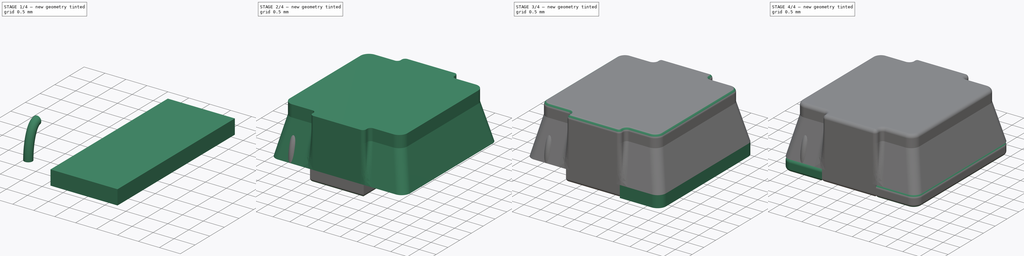
[diagram: build sequence overview — one tinted view per stage of 4, left to right]
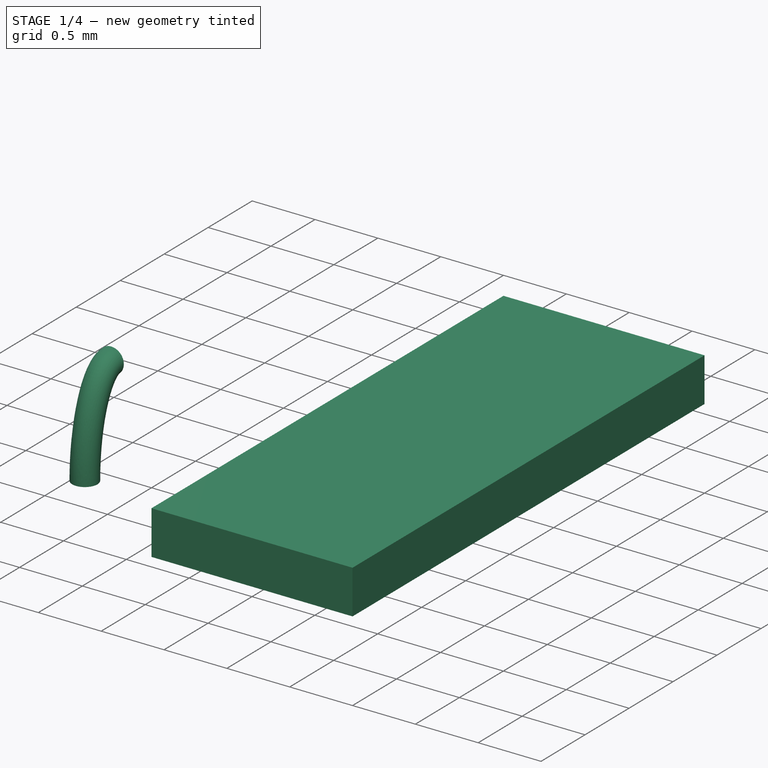
[diagram: stage 1 of 4 — iso view after this stage's code; geometry added in this stage tinted green]
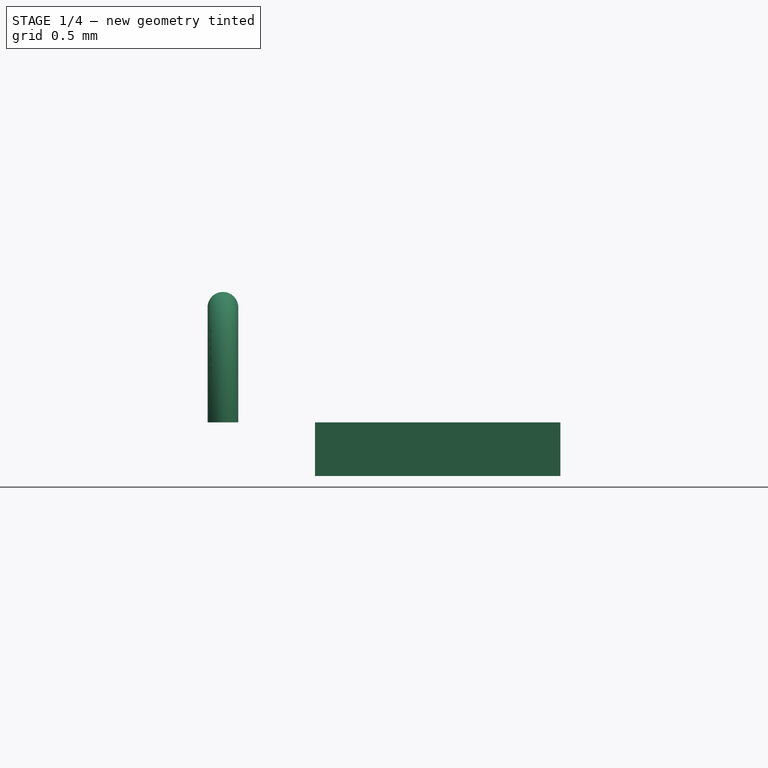
[diagram: stage 1 of 4 — front view after this stage's code; geometry added in this stage tinted green]
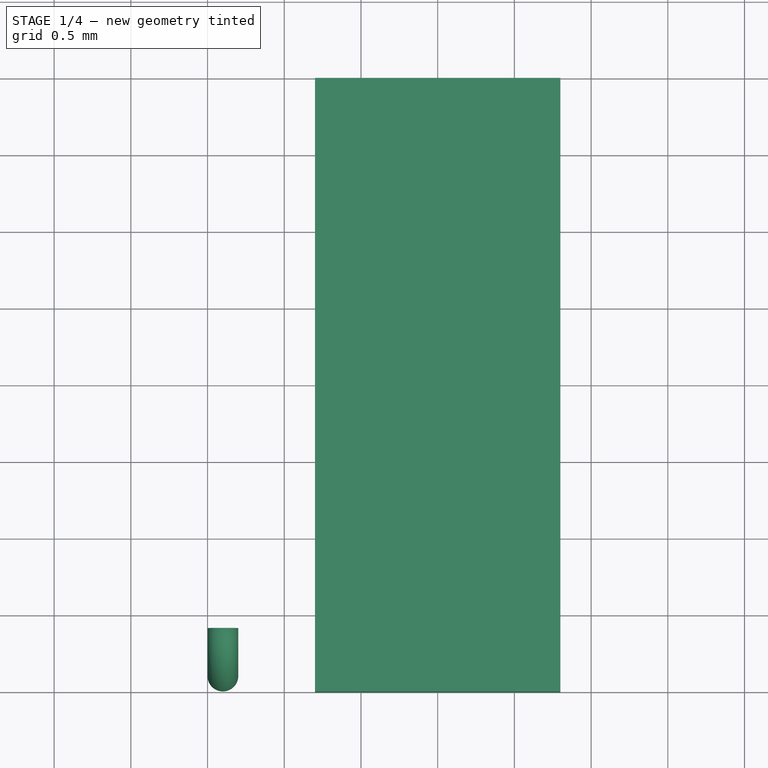
[diagram: stage 1 of 4 — top view after this stage's code; geometry added in this stage tinted green]
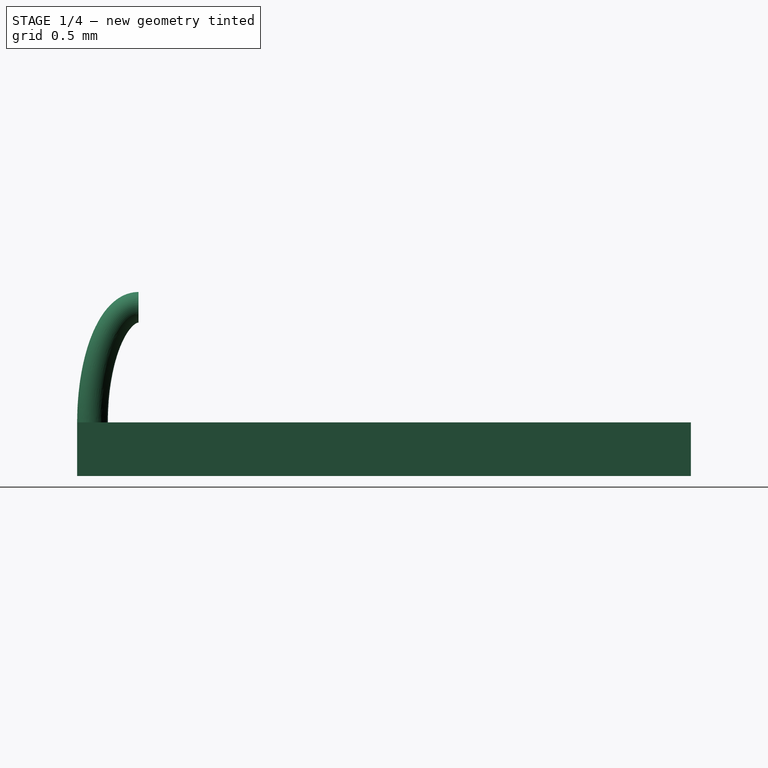
[diagram: stage 1 of 4 — right view after this stage's code; geometry added in this stage tinted green]
FCSTD DOCUMENT  (FreeCAD 0.18R15860 (Git))
Label: L_Bourns_SRN4018TA
License: All rights reserved
LicenseURL: http://en.wikipedia.org/wiki/All_rights_reserved
objects: Sketcher::SketchObject×9, PartDesign::Body×5, PartDesign::Pad×4, PartDesign::Fillet×4, PartDesign::AdditivePipe×2, PartDesign::AdditiveLoft×1, App::Part×1, Part::Feature×1
note: 33 computed .brp shape members not serialized (recipe doc carries the construction recipe); baked Part::Feature solids carry a one-line shape summary decoded from their .brp

FEATURE [Sketcher::SketchObject] Sketch003
  MapMode = 5
  Support = -> [XY_Plane002]
  sketch-geometry (4):
    g0: LineSegment StartX=-0.8 StartY=2 StartZ=0 EndX=0.8 EndY=2 EndZ=0
    g1: LineSegment StartX=0.8 StartY=2 StartZ=0 EndX=0.8 EndY=-2 EndZ=0
    g2: LineSegment StartX=0.8 StartY=-2 StartZ=0 EndX=-0.8 EndY=-2 EndZ=0
    g3: LineSegment StartX=-0.8 StartY=-2 StartZ=0 EndX=-0.8 EndY=2 EndZ=0
  constraints (10):
    c: Coincident(g0,g1)
    c: Coincident(g1,g2)
    c: Coincident(g2,g3)
    c: Coincident(g3,g0)
    c: Horizontal(g2)
    c: Vertical(g1)
    c: DistanceY(g1,g1) = 4
    c: DistanceX(g2,g2) = 1.6
    c: Symmetric(g0,g0,g-2)
    c: Symmetric(g0,g2,g-1)
FEATURE [PartDesign::Pad] Pad002
  Length = 0.35
  Length2 = 100
  Profile = -> Sketch003
  Type = 0
FEATURE [PartDesign::Body] Body002  label="Housing"
  Group = -> [Sketch003,Pad002,Sketch004,Sketch005,AdditiveLoft,Pad003,Fillet002,Fillet003]
  Origin = -> Origin002
  Tip = -> Fillet003
FEATURE [Sketcher::SketchObject] Sketch006
  AttachmentOffset = pos=(0,0,0.35) rot=(0,0,1;0rad)
  MapMode = 5
  Placement = pos=(0,0,0.35) rot=(0,0,1;0rad)
  Support = -> [XY_Plane003]
  sketch-geometry (1):
    g0: Circle CenterX=-1.4 CenterY=-1.9 CenterZ=0 NormalX=0 NormalY=0 NormalZ=1 AngleXU=0 Radius=0.1
  constraints (3):
    c: Radius(g0) = 0.1
    c: DistanceY(g0,g-1) = 1.9
    c: DistanceX(g0,g-1) = 1.4
FEATURE [Sketcher::SketchObject] Sketch008
  AttachmentOffset = pos=(0,0,-1.4) rot=(0,0,1;0rad)
  MapMode = 5
  Placement = pos=(-1.4,3e-16,-3e-16) rot=(0.57735,0.57735,0.57735;2.0944rad)
  Support = -> [YZ_Plane003]
  sketch-geometry (5):
    g0: ArcOfEllipse CenterX=-1.6 CenterY=0.35 CenterZ=0 NormalX=0 NormalY=0 NormalZ=1 MajorRadius=0.75 MinorRadius=0.3 AngleXU=1.5708 StartAngle=3e-16 EndAngle=1.5708
    g1: LineSegment [constr] StartX=-1.6 StartY=1.1 StartZ=0 EndX=-1.6 EndY=-0.4 EndZ=0
    g2: LineSegment [constr] StartX=-1.9 StartY=0.35 StartZ=0 EndX=-1.3 EndY=0.35 EndZ=0
    g3: GeomPoint X=-1.6 Y=1.03739 Z=0
    g4: GeomPoint X=-1.6 Y=-0.337386 Z=0
  constraints (8):
    c: InternalAlignment(g1-g4 -> g0) x4
    c: Coincident(g0,g1)
    c: Coincident(g0,g2)
    c: Horizontal(g2)
    c: DistanceY(g-1,g0) = 0.35
    c: DistanceY(g-1,g0) = 1.1
    c: DistanceX(g0,g-1) = 1.6
    c: DistanceX(g0,g-1) = 1.9
FEATURE [PartDesign::AdditivePipe] AdditivePipe
  AuxilleryCurvelinear = true
  AuxillerySpineTangent = false
  Binormal = (0,0,0)
  Mode = 0
  Profile = -> Sketch006
  Spine = -> Sketch008
  SpineTangent = false
  Transformation = 0
  Transition = 0
FEATURE [PartDesign::Body] Body003  label="Copper1"
  Group = -> [Sketch006,Sketch008,AdditivePipe]
  Origin = -> Origin003
  Placement = pos=(0.5,0,0) rot=(0,0,1;0rad)
  Tip = -> AdditivePipe
FEATURE [Sketcher::SketchObject] Sketch009
  AttachmentOffset = pos=(0,0,-1.4) rot=(0,0,1;0rad)
  MapMode = 5
  Placement = pos=(-1.4,3e-16,-3e-16) rot=(0.57735,0.57735,0.57735;2.0944rad)
  Support = -> [YZ_Plane004]
  sketch-geometry (5):
    g0: ArcOfEllipse CenterX=-1.6 CenterY=0.35 CenterZ=0 NormalX=0 NormalY=0 NormalZ=1 MajorRadius=0.75 MinorRadius=0.3 AngleXU=1.5708 StartAngle=3e-16 EndAngle=1.5708
    g1: LineSegment [constr] StartX=-1.6 StartY=1.1 StartZ=0 EndX=-1.6 EndY=-0.4 EndZ=0
    g2: LineSegment [constr] StartX=-1.9 StartY=0.35 StartZ=0 EndX=-1.3 EndY=0.35 EndZ=0
    g3: GeomPoint X=-1.6 Y=1.03739 Z=0
    g4: GeomPoint X=-1.6 Y=-0.337386 Z=0
  constraints (8):
    c: InternalAlignment(g1-g4 -> g0) x4
    c: Coincident(g0,g1)
    c: Coincident(g0,g2)
    c: Horizontal(g2)
    c: DistanceY(g-1,g0) = 0.35
    c: DistanceY(g-1,g0) = 1.1
    c: DistanceX(g0,g-1) = 1.6
    c: DistanceX(g0,g-1) = 1.9
FEATURE [Sketcher::SketchObject] Sketch010
  AttachmentOffset = pos=(0,0,0.35) rot=(0,0,1;0rad)
  MapMode = 5
  Placement = pos=(0,0,0.35) rot=(0,0,1;0rad)
  Support = -> [XY_Plane004]
  sketch-geometry (1):
    g0: Circle CenterX=-1.4 CenterY=-1.9 CenterZ=0 NormalX=0 NormalY=0 NormalZ=1 AngleXU=0 Radius=0.1
  constraints (3):
    c: Radius(g0) = 0.1
    c: DistanceY(g0,g-1) = 1.9
    c: DistanceX(g0,g-1) = 1.4
FEATURE [PartDesign::AdditivePipe] AdditivePipe001
  AuxilleryCurvelinear = true
  AuxillerySpineTangent = false
  Binormal = (0,0,0)
  Mode = 0
  Profile = -> Sketch010
  Spine = -> Sketch009
  SpineTangent = false
  Transformation = 0
  Transition = 0
FEATURE [PartDesign::Body] Body004  label="Copper2"
  Group = -> [Sketch010,Sketch009,AdditivePipe001]
  Origin = -> Origin004
  Placement = pos=(2.3,0,0) rot=(0,0,1;0rad)
  Tip = -> AdditivePipe001
FEATURE [App::Part] Part  label="SRN4018TA"
  Group = -> [Body,Body001,Body002,Body003,Body004]
  Origin = -> Origin006
FEATURE [Part::Feature] Shape  label="L_Bourns-SRN4018"
  shape: bbox 4.041 x 4.111 x 1.805 mm, 136 faces, 5 solids (baked)
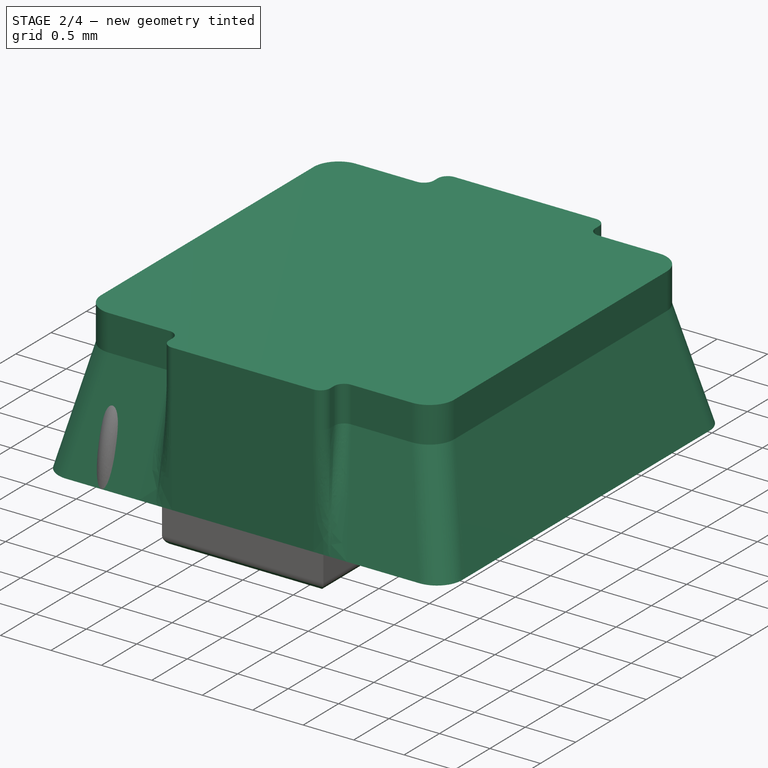
[diagram: stage 2 of 4 — iso view after this stage's code; geometry added in this stage tinted green]
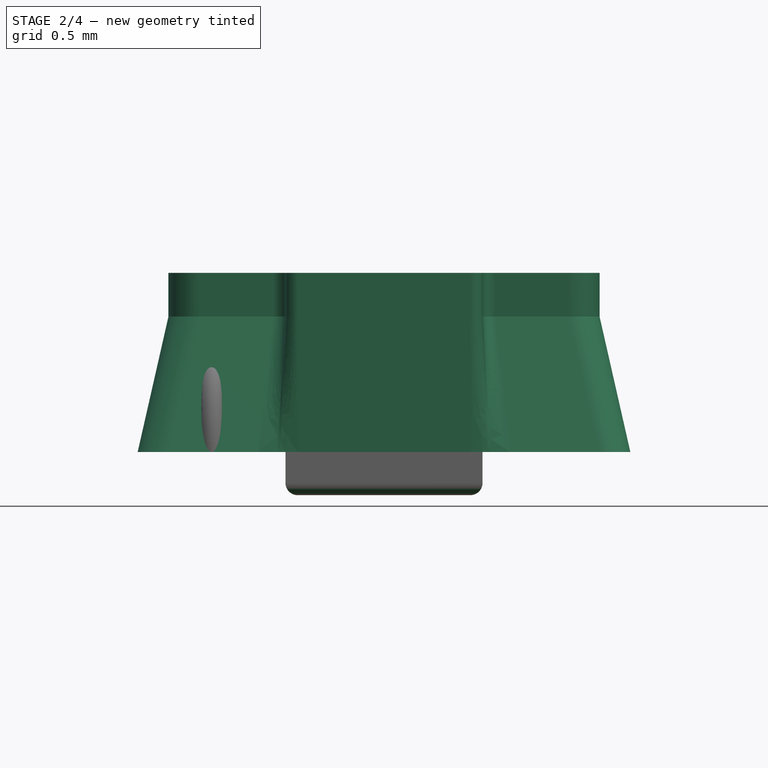
[diagram: stage 2 of 4 — front view after this stage's code; geometry added in this stage tinted green]
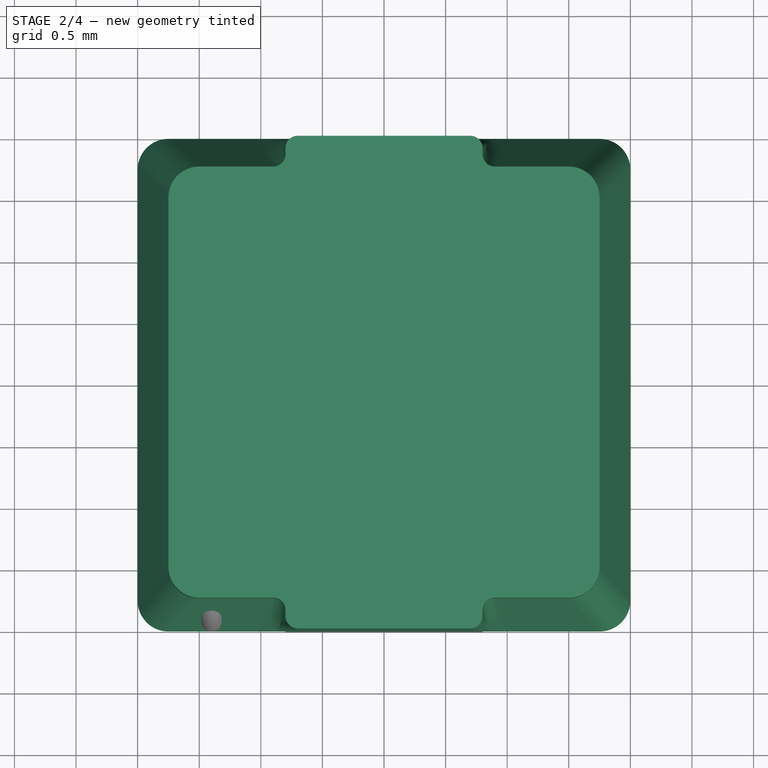
[diagram: stage 2 of 4 — top view after this stage's code; geometry added in this stage tinted green]
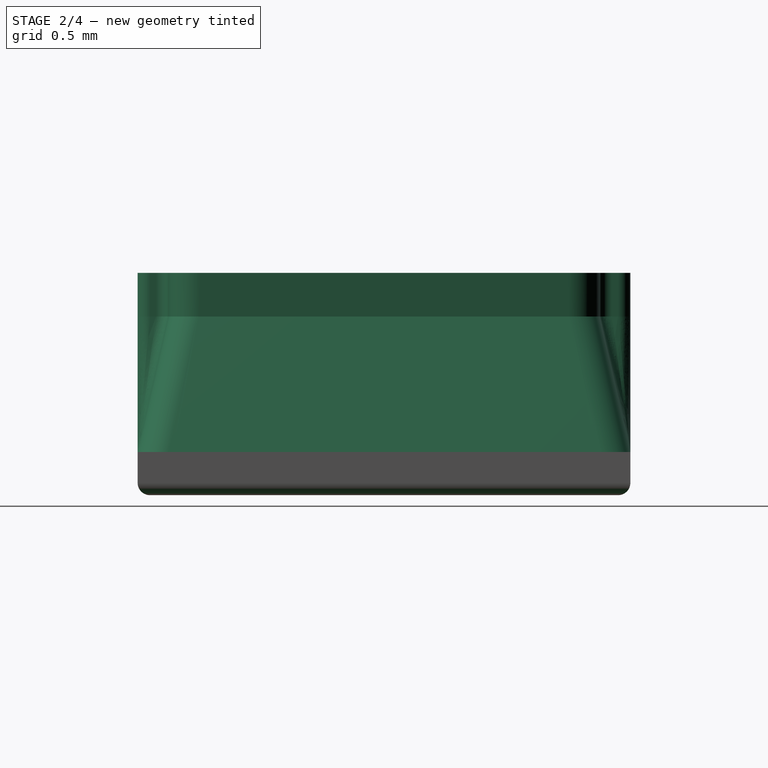
[diagram: stage 2 of 4 — right view after this stage's code; geometry added in this stage tinted green]
FEATURE [Sketcher::SketchObject] Sketch004
  MapMode = 5
  Placement = pos=(0,0,0.35) rot=(0,0,1;0rad)
  Support = -> [Pad002]
  sketch-geometry (8):
    g0: LineSegment StartX=-1.75 StartY=2 StartZ=0 EndX=1.75 EndY=2 EndZ=0
    g1: LineSegment StartX=2 StartY=1.75 StartZ=0 EndX=2 EndY=-1.75 EndZ=0
    g2: LineSegment StartX=1.75 StartY=-2 StartZ=0 EndX=-1.75 EndY=-2 EndZ=0
    g3: LineSegment StartX=-2 StartY=-1.75 StartZ=0 EndX=-2 EndY=1.75 EndZ=0
    g4: ArcOfCircle CenterX=-1.75 CenterY=1.75 CenterZ=0 NormalX=0 NormalY=0 NormalZ=1 AngleXU=0 Radius=0.25 StartAngle=1.5708 EndAngle=3.14159
    g5: ArcOfCircle CenterX=-1.75 CenterY=-1.75 CenterZ=0 NormalX=0 NormalY=0 NormalZ=1 AngleXU=0 Radius=0.25 StartAngle=3.14159 EndAngle=4.71239
    g6: ArcOfCircle CenterX=1.75 CenterY=1.75 CenterZ=0 NormalX=0 NormalY=0 NormalZ=1 AngleXU=0 Radius=0.25 StartAngle=1e-16 EndAngle=1.5708
    g7: ArcOfCircle CenterX=1.75 CenterY=-1.75 CenterZ=0 NormalX=0 NormalY=0 NormalZ=1 AngleXU=0 Radius=0.25 StartAngle=4.71239 EndAngle=6.28319
  constraints (18):
    c: Horizontal(g0)
    c: Horizontal(g2)
    c: Vertical(g1)
    c: Vertical(g3)
    c: Tangent(g0,g4) = 1.5708
    c: Tangent(g3,g4) = 1.5708
    c: Tangent(g2,g5) = 1.5708
    c: Tangent(g3,g5) = 1.5708
    c: Tangent(g0,g6) = 1.5708
    c: Tangent(g1,g6) = 1.5708
    c: Tangent(g1,g7) = 1.5708
    c: Tangent(g2,g7) = 1.5708
    c: Equal(g4,g6)
    c: Radius(g4) = 0.25
    c: DistanceX(g3,g1) = 4
    c: DistanceY(g2,g0) = 4
    c: Symmetric(g0,g2,g-1)
    c: Symmetric(g3,g1,g-2)
FEATURE [Sketcher::SketchObject] Sketch005
  AttachmentOffset = pos=(0,0,1.1) rot=(0,0,1;0rad)
  MapMode = 5
  Placement = pos=(0,0,1.45) rot=(0,0,1;0rad)
  Support = -> [Pad002]
  sketch-geometry (26):
    g0: LineSegment [constr] StartX=-1.5 StartY=1.75 StartZ=0 EndX=1.5 EndY=1.75 EndZ=0
    g1: LineSegment StartX=1.75 StartY=1.5 StartZ=0 EndX=1.75 EndY=-1.5 EndZ=0
    g2: LineSegment [constr] StartX=1.5 StartY=-1.75 StartZ=0 EndX=-1.5 EndY=-1.75 EndZ=0
    g3: LineSegment StartX=-1.75 StartY=-1.5 StartZ=0 EndX=-1.75 EndY=1.5 EndZ=0
    g4: ArcOfCircle CenterX=-1.5 CenterY=1.5 CenterZ=0 NormalX=0 NormalY=0 NormalZ=1 AngleXU=0 Radius=0.25 StartAngle=1.5708 EndAngle=3.14159
    g5: ArcOfCircle CenterX=1.5 CenterY=1.5 CenterZ=0 NormalX=0 NormalY=0 NormalZ=1 AngleXU=0 Radius=0.25 StartAngle=0 EndAngle=1.5708
    g6: ArcOfCircle CenterX=1.5 CenterY=-1.5 CenterZ=0 NormalX=0 NormalY=0 NormalZ=1 AngleXU=0 Radius=0.25 StartAngle=4.71239 EndAngle=6.28319
    g7: ArcOfCircle CenterX=-1.5 CenterY=-1.5 CenterZ=0 NormalX=0 NormalY=0 NormalZ=1 AngleXU=0 Radius=0.25 StartAngle=3.14159 EndAngle=4.71239
    g8: LineSegment StartX=-1.5 StartY=1.75 StartZ=0 EndX=-0.9 EndY=1.75 EndZ=0
    g9: LineSegment StartX=-0.8 StartY=1.85 StartZ=0 EndX=-0.8 EndY=1.9 EndZ=0
    g10: LineSegment StartX=-0.7 StartY=2 StartZ=0 EndX=0.7 EndY=2 EndZ=0
    g11: LineSegment StartX=0.8 StartY=1.9 StartZ=0 EndX=0.8 EndY=1.85 EndZ=0
    g12: LineSegment StartX=0.9 StartY=1.75 StartZ=0 EndX=1.5 EndY=1.75 EndZ=0
    g13: LineSegment StartX=-1.5 StartY=-1.75 StartZ=0 EndX=-0.9 EndY=-1.75 EndZ=0
    g14: LineSegment StartX=-0.8 StartY=-1.85 StartZ=0 EndX=-0.8 EndY=-1.9 EndZ=0
    g15: LineSegment StartX=-0.7 StartY=-2 StartZ=0 EndX=0.7 EndY=-2 EndZ=0
    g16: LineSegment StartX=0.8 StartY=-1.9 StartZ=0 EndX=0.8 EndY=-1.85 EndZ=0
    g17: LineSegment StartX=0.9 StartY=-1.75 StartZ=0 EndX=1.5 EndY=-1.75 EndZ=0
    g18: ArcOfCircle CenterX=-0.9 CenterY=-1.85 CenterZ=0 NormalX=0 NormalY=0 NormalZ=1 AngleXU=0 Radius=0.1 StartAngle=1e-16 EndAngle=1.5708
    g19: ArcOfCircle CenterX=-0.7 CenterY=-1.9 CenterZ=0 NormalX=0 NormalY=0 NormalZ=1 AngleXU=0 Radius=0.1 StartAngle=3.14159 EndAngle=4.71239
    g20: ArcOfCircle CenterX=0.7 CenterY=-1.9 CenterZ=0 NormalX=0 NormalY=0 NormalZ=1 AngleXU=0 Radius=0.1 StartAngle=4.71239 EndAngle=6.28319
    g21: ArcOfCircle CenterX=0.9 CenterY=-1.85 CenterZ=0 NormalX=0 NormalY=0 NormalZ=1 AngleXU=0 Radius=0.1 StartAngle=1.5708 EndAngle=3.14159
    g22: ArcOfCircle CenterX=-0.9 CenterY=1.85 CenterZ=0 NormalX=0 NormalY=0 NormalZ=1 AngleXU=0 Radius=0.1 StartAngle=4.71239 EndAngle=6.28319
    g23: ArcOfCircle CenterX=-0.7 CenterY=1.9 CenterZ=0 NormalX=0 NormalY=0 NormalZ=1 AngleXU=0 Radius=0.1 StartAngle=1.5708 EndAngle=3.14159
    g24: ArcOfCircle CenterX=0.7 CenterY=1.9 CenterZ=0 NormalX=0 NormalY=0 NormalZ=1 AngleXU=0 Radius=0.1 StartAngle=1e-15 EndAngle=1.5708
    g25: ArcOfCircle CenterX=0.9 CenterY=1.85 CenterZ=0 NormalX=0 NormalY=0 NormalZ=1 AngleXU=0 Radius=0.1 StartAngle=3.14159 EndAngle=4.71239
  constraints (55):
    c: Horizontal(g0)
    c: Horizontal(g2)
    c: Vertical(g1)
    c: Vertical(g3)
    c: Tangent(g0,g4) = 1.5708
    c: Tangent(g3,g4) = 1.5708
    c: Tangent(g0,g5) = 1.5708
    c: Tangent(g1,g5) = 1.5708
    c: Tangent(g1,g6) = 1.5708
    c: Tangent(g2,g6) = 1.5708
    c: Tangent(g2,g7) = 1.5708
    c: Tangent(g3,g7) = 1.5708
    c: Equal(g7,g6)
    c: Radius(g4) = 0.25
    c: DistanceX(g3,g1) = 3.5
    c: DistanceY(g2,g0) = 3.5
    c: Symmetric(g3,g1,g-2)
    c: Symmetric(g0,g2,g-1)
    c: Tangent(g4,g8) = 1.5708
    c: Vertical(g9)
    c: Coincident(g12,g5)
    c: Tangent(g7,g13) = -1.5708
    c: Vertical(g14)
    c: Coincident(g17,g6)
    c: Tangent(g13,g18) = 1.5708
    c: Tangent(g14,g18) = 1.5708
    c: Tangent(g14,g19) = -1.5708
    c: Tangent(g15,g19) = -1.5708
    c: Tangent(g15,g20) = -1.5708
    c: Tangent(g16,g20) = -1.5708
    c: Tangent(g16,g21) = 1.5708
    c: Tangent(g17,g21) = 1.5708
    c: Tangent(g8,g22) = -1.5708
    c: Tangent(g9,g22) = -1.5708
    c: Tangent(g9,g23) = 1.5708
    c: Tangent(g10,g23) = 1.5708
    c: Tangent(g10,g24) = 1.5708
    c: Tangent(g11,g24) = 1.5708
    c: Tangent(g11,g25) = -1.5708
    c: Tangent(g12,g25) = -1.5708
    c: Equal(g22,g23)
    c: Equal(g25,g24)
    c: Equal(g22,g18)
    c: Equal(g18,g19)
    c: Equal(g20,g21)
    c: Equal(g10,g15)
    c: Symmetric(g15,g15,g-2)
    c: Symmetric(g14,g16,g-2)
    c: Symmetric(g9,g11,g-2)
    c: Symmetric(g9,g11,g-2)
    c: DistanceX(g9,g11) = 1.6
    c: DistanceY(g15,g10) = 4
    c: Radius(g23) = 0.1
    c: Symmetric(g10,g15,g-1)
    c: Horizontal(g17)
FEATURE [PartDesign::AdditiveLoft] AdditiveLoft
  BaseFeature = -> Pad002
  Closed = false
  Profile = -> Sketch004
  Ruled = false
  Sections = -> [Sketch005]
FEATURE [PartDesign::Pad] Pad003
  BaseFeature = -> AdditiveLoft
  Length = 0.355
  Length2 = 100
  Profile = -> Sketch005
  Type = 0
FEATURE [PartDesign::Body] Body001  label="Pin2"
  Group = -> [Sketch002,Pad001,Fillet001]
  Origin = -> Origin001
  Tip = -> Fillet001
FEATURE [PartDesign::Fillet] Fillet002
  Base = -> Pad003 [Face4]
  BaseFeature = -> Pad003
  Radius = 0.1
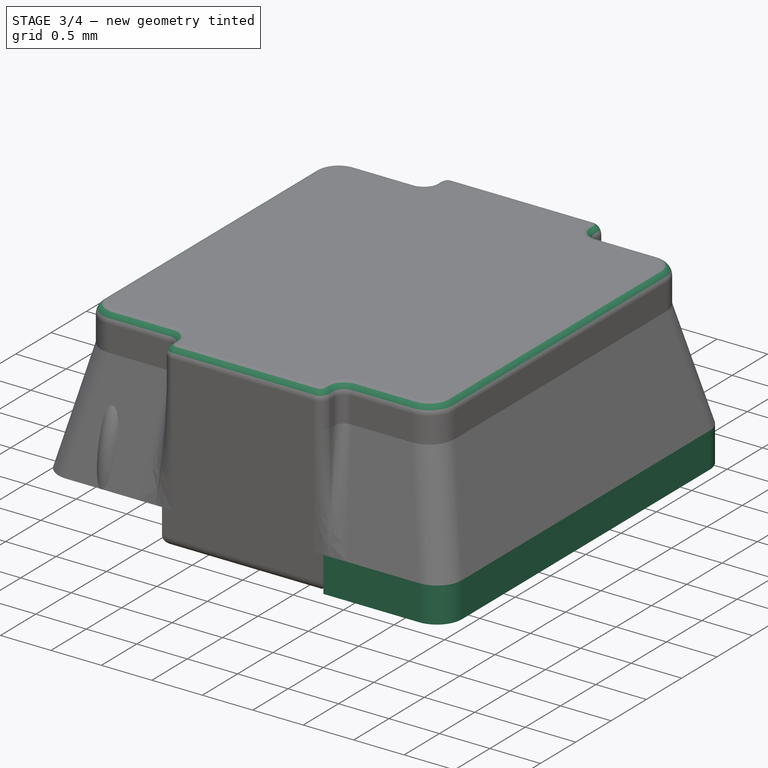
[diagram: stage 3 of 4 — iso view after this stage's code; geometry added in this stage tinted green]
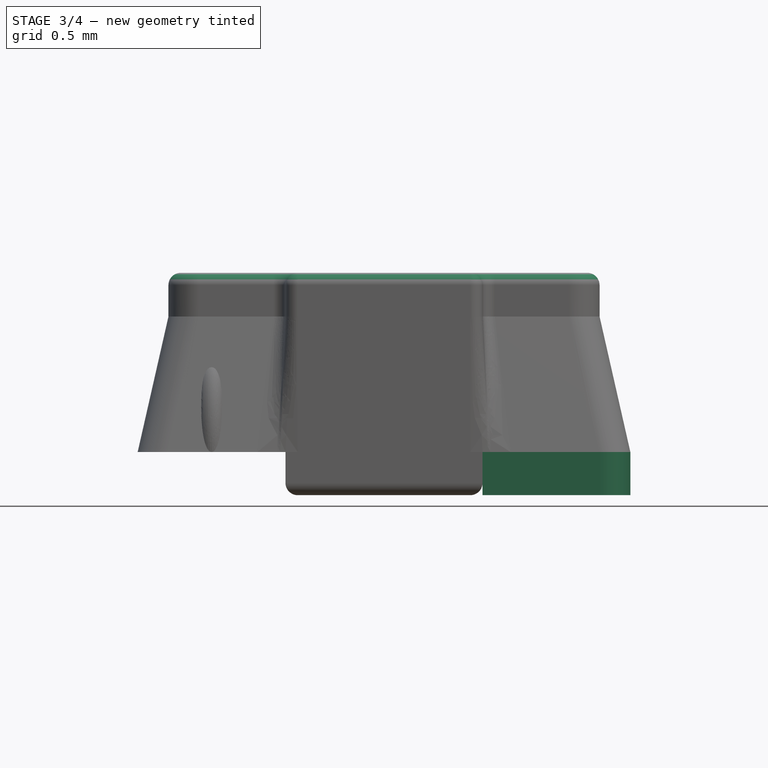
[diagram: stage 3 of 4 — front view after this stage's code; geometry added in this stage tinted green]
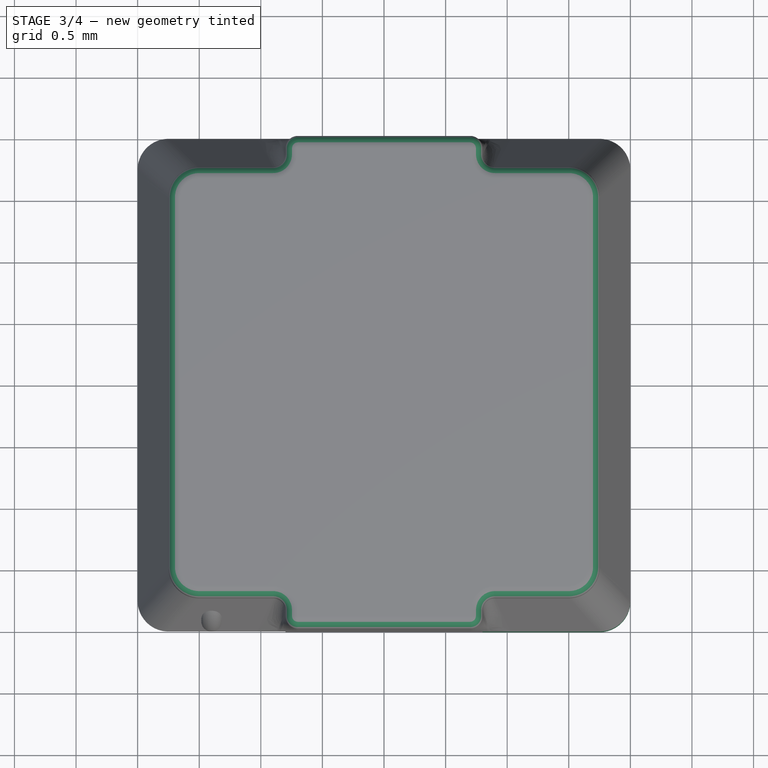
[diagram: stage 3 of 4 — top view after this stage's code; geometry added in this stage tinted green]
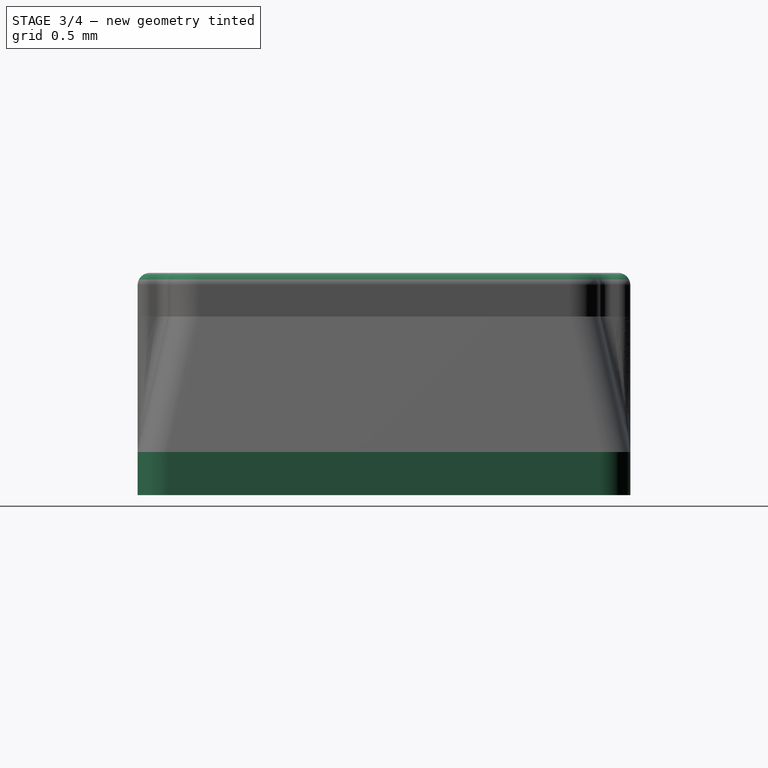
[diagram: stage 3 of 4 — right view after this stage's code; geometry added in this stage tinted green]
FEATURE [Sketcher::SketchObject] Sketch002
  MapMode = 5
  Support = -> [XY_Plane001]
  sketch-geometry (6):
    g0: LineSegment StartX=1.75 StartY=2 StartZ=0 EndX=0.8 EndY=2 EndZ=0
    g1: LineSegment StartX=0.8 StartY=2 StartZ=0 EndX=0.8 EndY=-2 EndZ=0
    g2: LineSegment StartX=0.8 StartY=-2 StartZ=0 EndX=1.75 EndY=-2 EndZ=0
    g3: LineSegment StartX=2 StartY=-1.75 StartZ=0 EndX=2 EndY=1.75 EndZ=0
    g4: ArcOfCircle CenterX=1.75 CenterY=1.75 CenterZ=0 NormalX=0 NormalY=0 NormalZ=1 AngleXU=0 Radius=0.25 StartAngle=3e-16 EndAngle=1.5708
    g5: ArcOfCircle CenterX=1.75 CenterY=-1.75 CenterZ=0 NormalX=0 NormalY=0 NormalZ=1 AngleXU=0 Radius=0.25 StartAngle=4.71239 EndAngle=6.28319
  constraints (15):
    c: Coincident(g0,g1)
    c: Coincident(g1,g2)
    c: Horizontal(g2)
    c: Horizontal(g0)
    c: DistanceY(g1,g0) = 4
    c: Symmetric(g0,g1,g-1)
    c: Vertical(g3)
    c: Tangent(g0,g4) = -1.5708
    c: Tangent(g3,g4) = -1.5708
    c: Tangent(g2,g5) = -1.5708
    c: Tangent(g3,g5) = -1.5708
    c: Equal(g5,g4)
    c: Radius(g4) = 0.25
    c: DistanceX(g0,g3) = 1.2
    c: DistanceX(g-1,g1) = 0.8
FEATURE [PartDesign::Pad] Pad001
  Length = 0.35
  Length2 = 100
  Profile = -> Sketch002
  Type = 0
FEATURE [PartDesign::Fillet] Fillet003
  Base = -> Fillet002 [Face36]
  BaseFeature = -> Fillet002
  Radius = 0.1
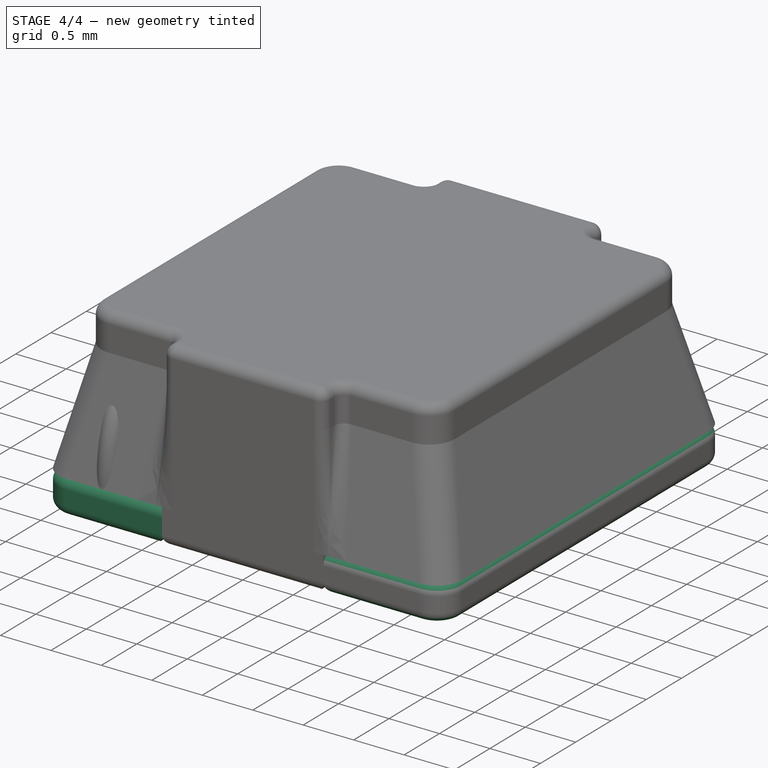
[diagram: stage 4 of 4 — iso view after this stage's code; geometry added in this stage tinted green]
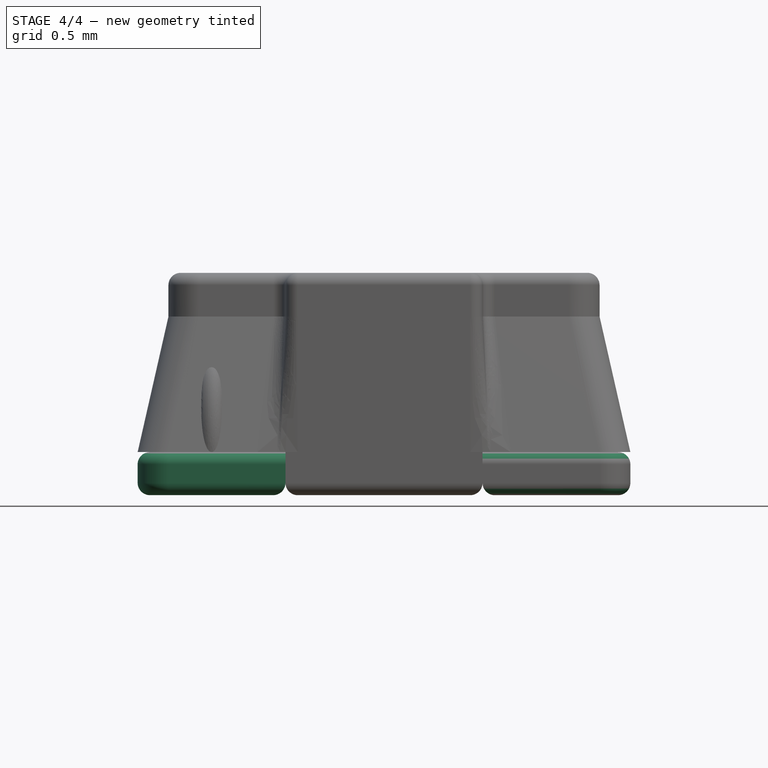
[diagram: stage 4 of 4 — front view after this stage's code; geometry added in this stage tinted green]
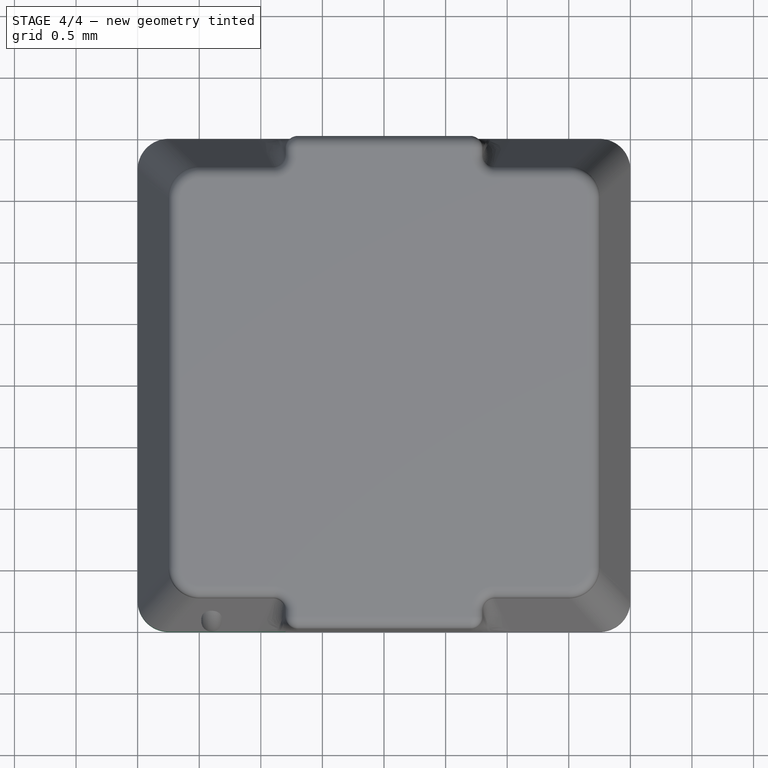
[diagram: stage 4 of 4 — top view after this stage's code; geometry added in this stage tinted green]
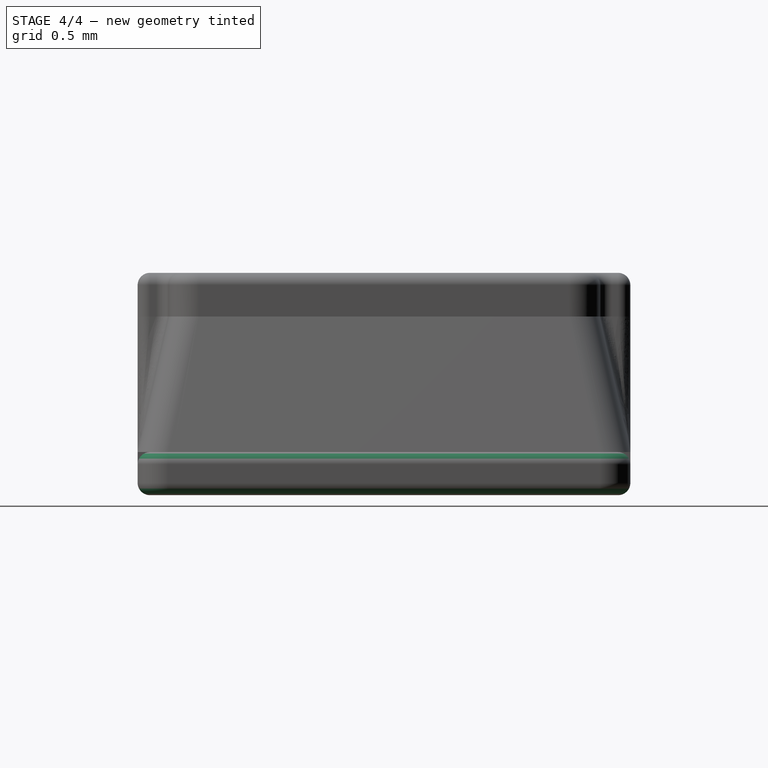
[diagram: stage 4 of 4 — right view after this stage's code; geometry added in this stage tinted green]
FEATURE [Sketcher::SketchObject] Sketch
  MapMode = 5
  Support = -> [XY_Plane]
  sketch-geometry (6):
    g0: LineSegment StartX=-1.75 StartY=2 StartZ=0 EndX=-0.8 EndY=2 EndZ=0
    g1: LineSegment StartX=-0.8 StartY=2 StartZ=0 EndX=-0.8 EndY=-2 EndZ=0
    g2: LineSegment StartX=-0.8 StartY=-2 StartZ=0 EndX=-1.75 EndY=-2 EndZ=0
    g3: LineSegment StartX=-2 StartY=-1.75 StartZ=0 EndX=-2 EndY=1.75 EndZ=0
    g4: ArcOfCircle CenterX=-1.75 CenterY=1.75 CenterZ=0 NormalX=0 NormalY=0 NormalZ=1 AngleXU=0 Radius=0.25 StartAngle=1.5708 EndAngle=3.14159
    g5: ArcOfCircle CenterX=-1.75 CenterY=-1.75 CenterZ=0 NormalX=0 NormalY=0 NormalZ=1 AngleXU=0 Radius=0.25 StartAngle=3.14159 EndAngle=4.71239
  constraints (15):
    c: Coincident(g0,g1)
    c: Coincident(g1,g2)
    c: Horizontal(g2)
    c: Horizontal(g0)
    c: DistanceX(g0,g-1) = 0.8
    c: DistanceY(g1,g0) = 4
    c: Tangent(g0,g4) = 1.5708
    c: Tangent(g3,g4) = 1.5708
    c: Tangent(g2,g5) = 1.5708
    c: Tangent(g3,g5) = 1.5708
    c: Equal(g5,g4)
    c: DistanceX(g3,g0) = 1.2
    c: Radius(g4) = 0.25
    c: Symmetric(g0,g1,g-1)
    c: Vertical(g3)
FEATURE [PartDesign::Pad] Pad
  Length = 0.35
  Length2 = 100
  Profile = -> Sketch
  Type = 0
FEATURE [PartDesign::Fillet] Fillet
  Base = -> Pad [Face7,Edge10]
  BaseFeature = -> Pad
  Radius = 0.1
FEATURE [PartDesign::Body] Body  label="Pin1"
  Group = -> [Sketch,Pad,Fillet]
  Origin = -> Origin
  Tip = -> Fillet
FEATURE [PartDesign::Fillet] Fillet001
  Base = -> Pad001 [Face7,Edge16]
  BaseFeature = -> Pad001
  Radius = 0.1
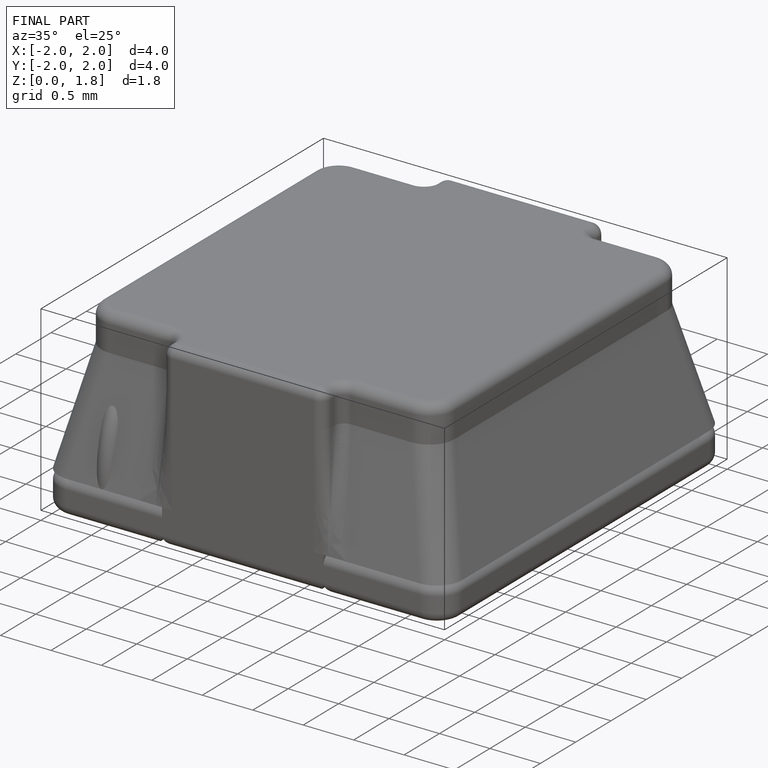
[diagram: finished part — iso view with bounding-box wireframe]
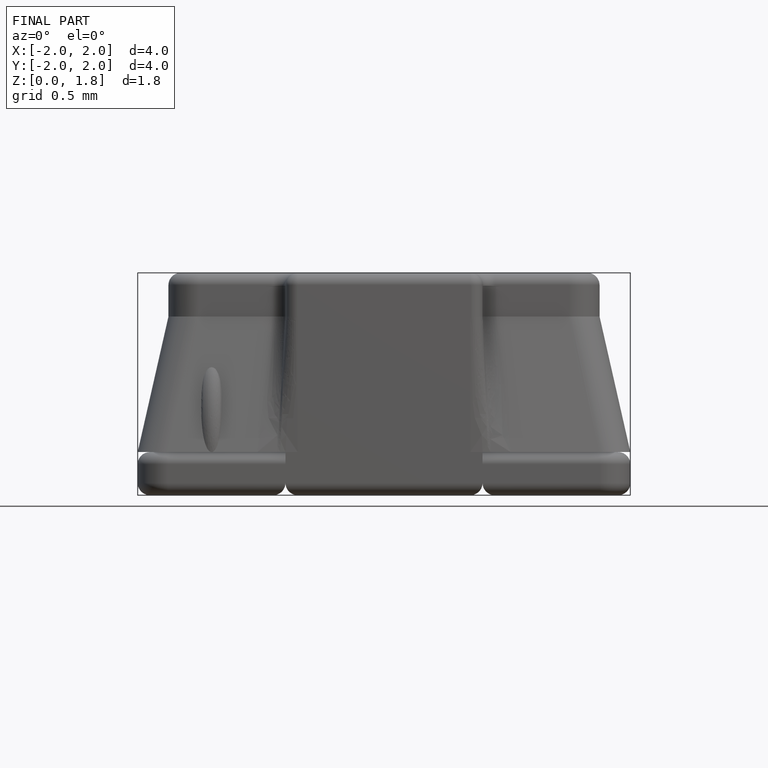
[diagram: finished part — front view with bounding-box wireframe]
